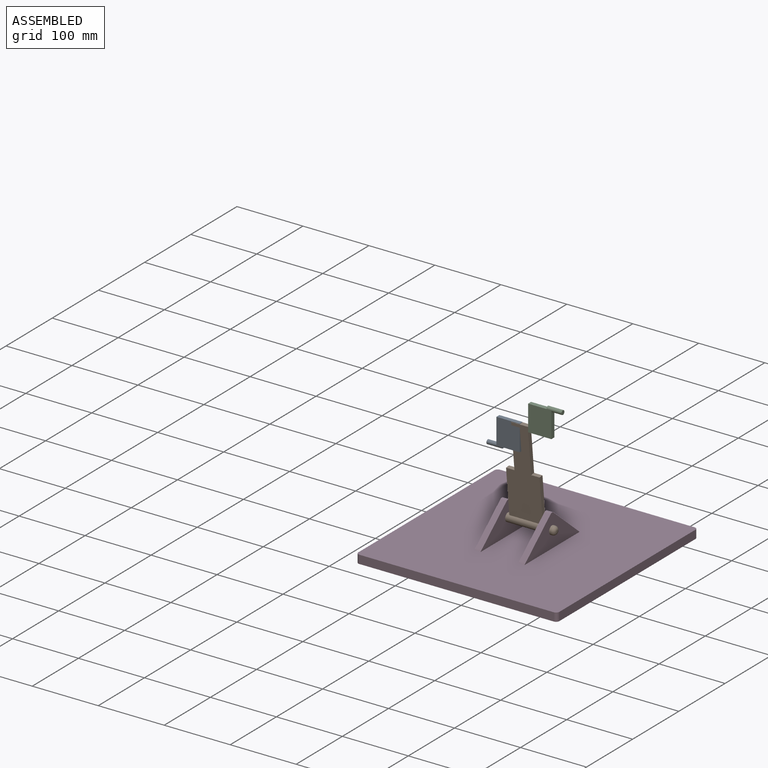
[diagram: assembled view]
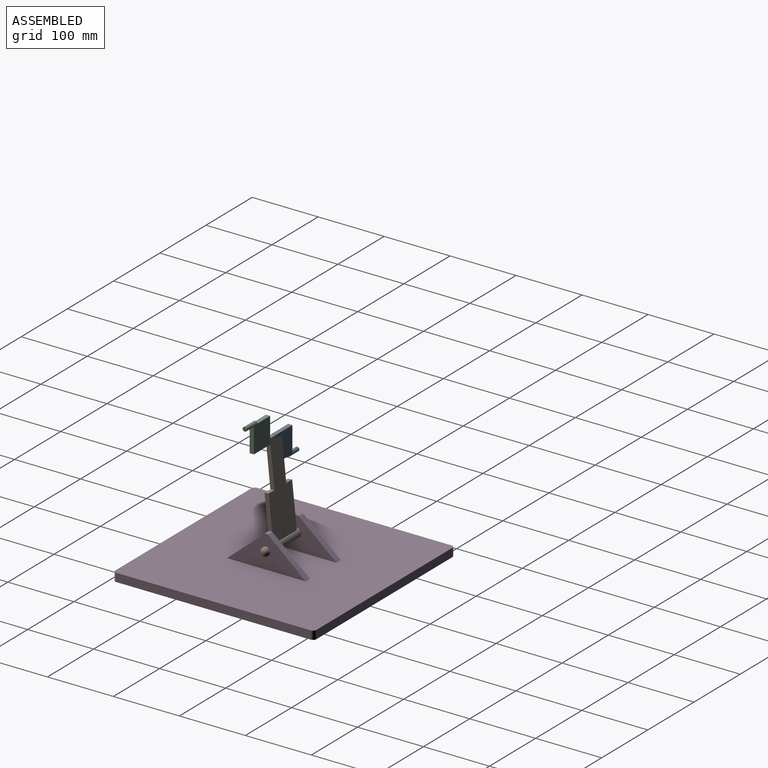
[diagram: assembled view, second angle]
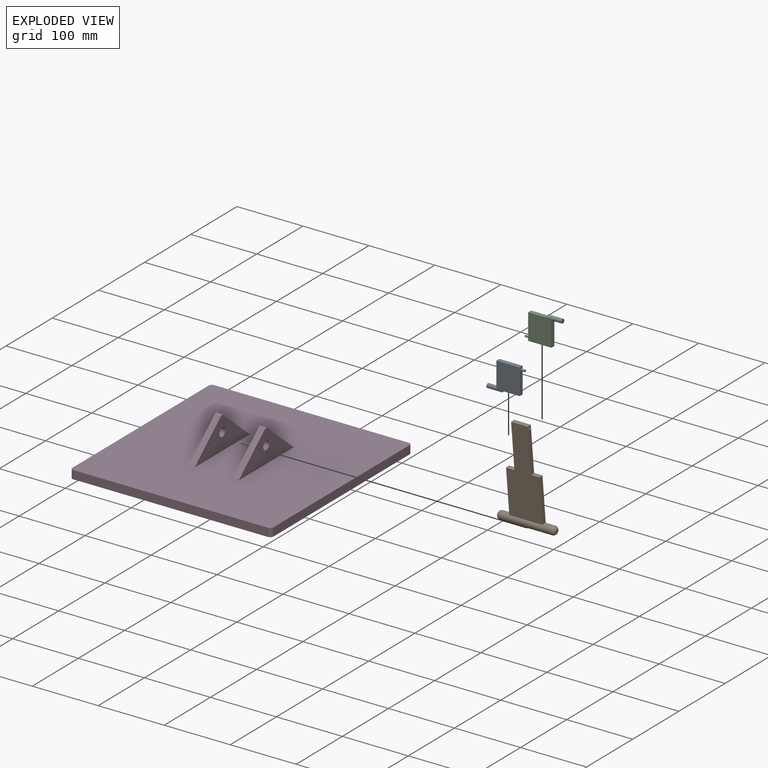
[diagram: exploded view]
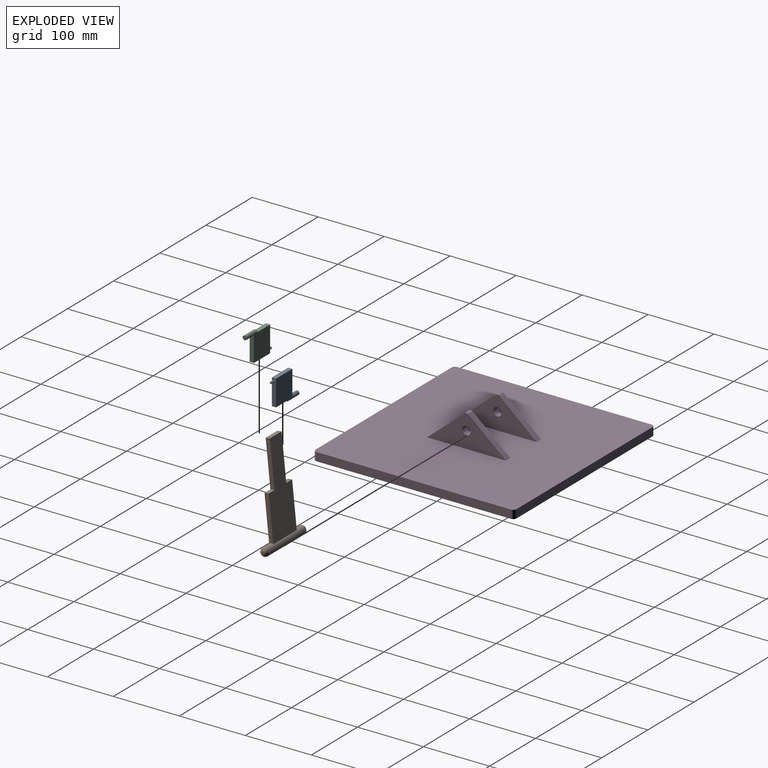
[diagram: exploded view, second angle]
ASSEMBLY  parts=4 mates=3
PART A: 11 faces, bbox 6.4x56.9x42.5 mm
  f0: plane 27.69x6.35mm, normal (0,0,-1), area 175.9mm2, adj f3,f4,f5,f9
  f1: plane 35.31x6.35mm, normal (0,0,1), area 224.2mm2, adj f2,f3,f4,f5
  f2: plane 39.29x6.35mm, normal (0,-1,0), area 233.6mm2, adj f1,f4,f5,f8
  f3: plane 39.29x6.35mm, normal (0,1,0), area 241.6mm2, adj f0,f1,f4,f5,f6
  f4: plane 39.29x35.31mm, normal (1,0,0), area 1387.4mm2, adj f0,f1,f2,f3,f8
  f5: plane 39.29x35.31mm, normal (-1,0,0), area 1387.4mm2, adj f0,f1,f2,f3,f8
  f6: cylinder r=1.59mm len=6.35mm, axis (0,-1,0), area 63.3mm2, adj f3,f7
  f7: plane 3.18x3.18mm, normal (0,1,0), area 7.9mm2, adj f6
  f8: cylinder r=3.17mm len=22.86mm, axis (0,1,0), area 380mm2, adj f2,f4,f5,f9,f10
  f9: plane 6.35x3.18mm, normal (0,1,0), area 15.8mm2, adj f0,f8
  f10: plane 6.35x6.35mm, normal (0,-1,0), area 31.7mm2, adj f8
PART B: 15 faces, bbox 88.9x12.7x148.9 mm
  f0: plane 25.4x6.35mm, normal (0,0,1), area 161.3mm2, adj f1,f9,f11,f12
  f1: plane 137.06x50.8mm, normal (0,-1,0), area 5207.4mm2, adj f0,f2,f7,f8,f10,f11,f12,f13
  f2: cylinder r=6.35mm len=78.74mm, axis (-1,0,0), area 2803.8mm2, adj f1,f5,f6,f7,f8,f9
  f3: plane 2.54x2.54mm, normal (1,0,0), area 5.1mm2, adj f6
  f4: plane 2.54x2.54mm, normal (-1,0,0), area 5.1mm2, adj f5
  f5: torus R=1.27mm, axis (1,0,0), area 225.8mm2, adj f2,f4
  f6: torus R=1.27mm, axis (1,0,0), area 225.8mm2, adj f2,f3
  f7: plane 67.96x6.35mm, normal (1,0,0), area 427.9mm2, adj f1,f2,f9,f13
  f8: plane 67.96x6.35mm, normal (-1,0,0), area 427.9mm2, adj f1,f2,f9,f10
  f9: plane 137.06x50.8mm, normal (0,1,0), area 5207.4mm2, adj f0,f2,f7,f8,f10,f11,f12,f13
  f10: plane 12.7x6.35mm, normal (0,0,1), area 80.6mm2, adj f1,f8,f9,f11
  f11: plane 69.1x6.35mm, normal (-1,0,0), area 430.9mm2, adj f0,f1,f9,f10,f14
  f12: plane 69.1x6.35mm, normal (1,0,0), area 430.9mm2, adj f0,f1,f9,f13,f14
  f13: plane 12.7x6.35mm, normal (0,0,1), area 80.6mm2, adj f1,f7,f9,f12
  f14: cylinder r=1.59mm len=25.4mm, axis (1,0,0), area 253.4mm2, adj f11,f12
PART C: same geometry as A
PART D: 22 faces, bbox 304.8x304.8x61.9 mm
  f0: plane 119.28x49.21mm, normal (1,0,0), area 2899.2mm2, adj f1,f10,f12,f13,f16
  f1: plane 304.8x304.8mm, normal (0,0,1), area 90608.6mm2, adj f0,f2,f3,f4,f5,f7,f8,f9
  f2: plane 294.64x12.7mm, normal (0,-1,0), area 3741.9mm2, adj f1,f6,f18,f21
  f3: plane 294.64x12.7mm, normal (1,0,0), area 3741.9mm2, adj f1,f6,f18,f19
  f4: plane 294.64x12.7mm, normal (0,1,0), area 3741.9mm2, adj f1,f6,f19,f20
  f5: plane 294.64x12.7mm, normal (-1,0,0), area 3741.9mm2, adj f1,f6,f20,f21
  f6: plane 304.8x304.8mm, normal (0,0,-1), area 92880.9mm2, adj f2,f3,f4,f5,f18,f19,f20,f21
  f7: plane 119.28x49.21mm, normal (1,0,0), area 2899.2mm2, adj f1,f11,f14,f15,f17
  f8: plane 119.28x49.21mm, normal (-1,0,0), area 2899.2mm2, adj f1,f11,f14,f15,f17
  f9: plane 119.28x49.21mm, normal (-1,0,0), area 2899.2mm2, adj f1,f10,f12,f13,f16
  f10: plane 56.35x47.99mm, normal (0,0.65,0.76), area 705mm2, adj f0,f1,f9,f16
  f11: plane 56.35x47.99mm, normal (0,0.65,0.76), area 705mm2, adj f1,f7,f8,f17
  f12: plane 56.35x47.99mm, normal (0,-0.65,0.76), area 705mm2, adj f0,f1,f9,f16
  f13: cylinder r=6.35mm len=12.7mm, axis (1,0,0), area 380mm2, adj f0,f9
  f14: plane 56.35x47.99mm, normal (0,-0.65,0.76), area 705mm2, adj f1,f7,f8,f17
  f15: cylinder r=6.35mm len=12.7mm, axis (1,0,0), area 380mm2, adj f7,f8
  f16: cylinder r=5.08mm len=9.53mm, axis (1,0,0), area 68.3mm2, adj f0,f9,f10,f12
  f17: cylinder r=5.08mm len=9.53mm, axis (1,0,0), area 68.3mm2, adj f7,f8,f11,f14
  f18: cylinder r=5.08mm len=12.7mm, axis (0,0,1), area 101.3mm2, adj f1,f2,f3,f6
  f19: cylinder r=5.08mm len=12.7mm, axis (0,0,-1), area 101.3mm2, adj f1,f3,f4,f6
  f20: cylinder r=5.08mm len=12.7mm, axis (0,0,1), area 101.3mm2, adj f1,f4,f5,f6
  f21: cylinder r=5.08mm len=12.7mm, axis (0,0,-1), area 101.3mm2, adj f1,f2,f5,f6
PLACE A rot(axis=(0,0,-1),90deg) t=(1.47,-44.46,208.96)mm
PLACE B rot(axis=(1,0,0),5.9deg) t=(-15.64,-0.48,82.31)mm
PLACE C rot(axis=(0.71,-0.71,0),180deg) t=(-20.04,-44.46,306.1)mm
PLACE D t=(-16.91,-33.41,81.32)mm
MATE revolute C.f6 <-> A.f6  axis (-1,0,0) through (-9.29,-47.75,257.53)mm
MATE revolute B.f2 <-> D.f13  axis (-1,0,0) through (-55.01,-33.41,119.42)mm
MATE revolute C.f6 <-> B.f14  axis (1,0,0) through (-2.94,-47.75,257.53)mm
